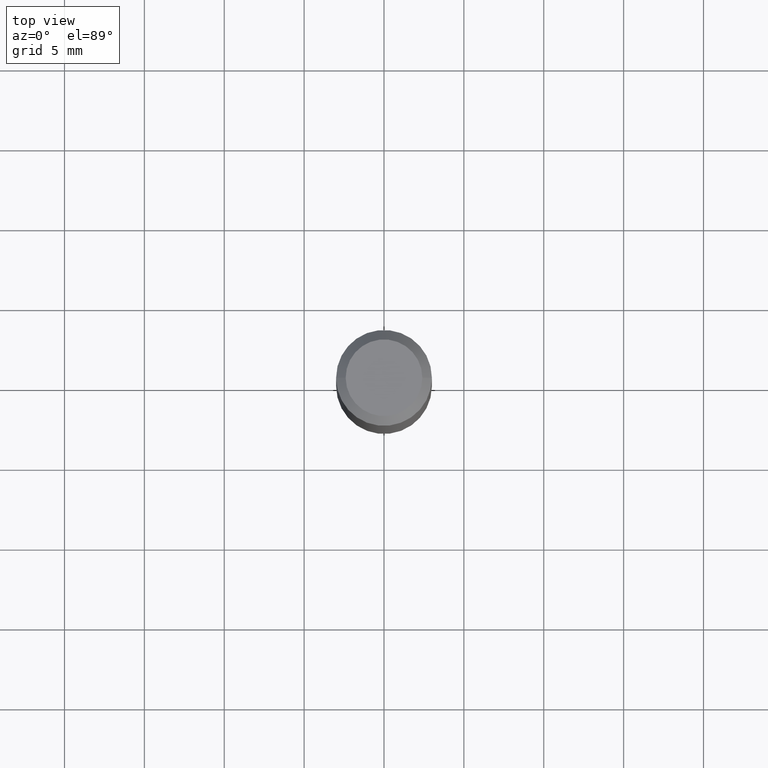
[diagram: clean part render]
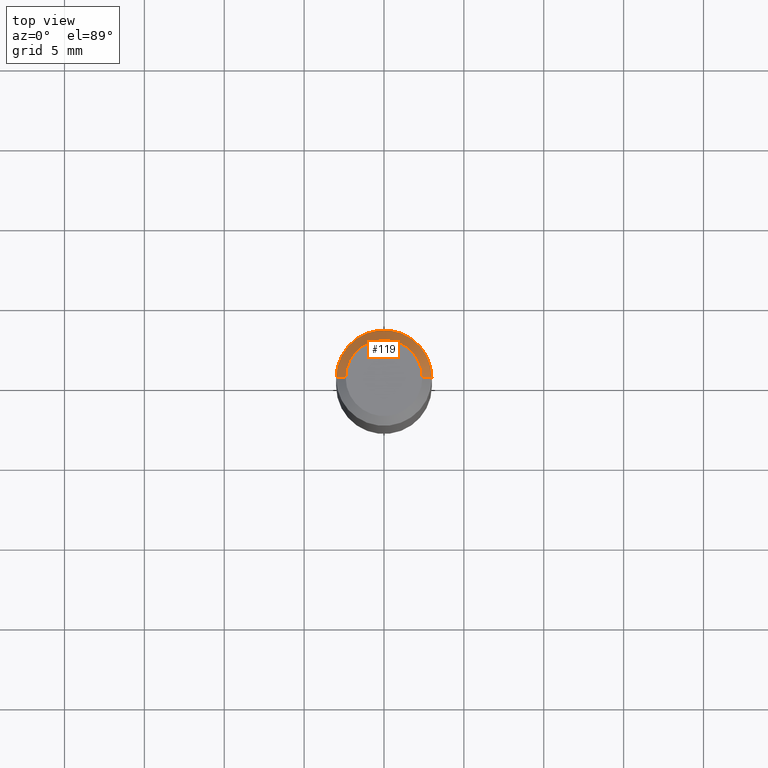
[diagram: same view with one face highlighted and labeled with its STEP entity id]
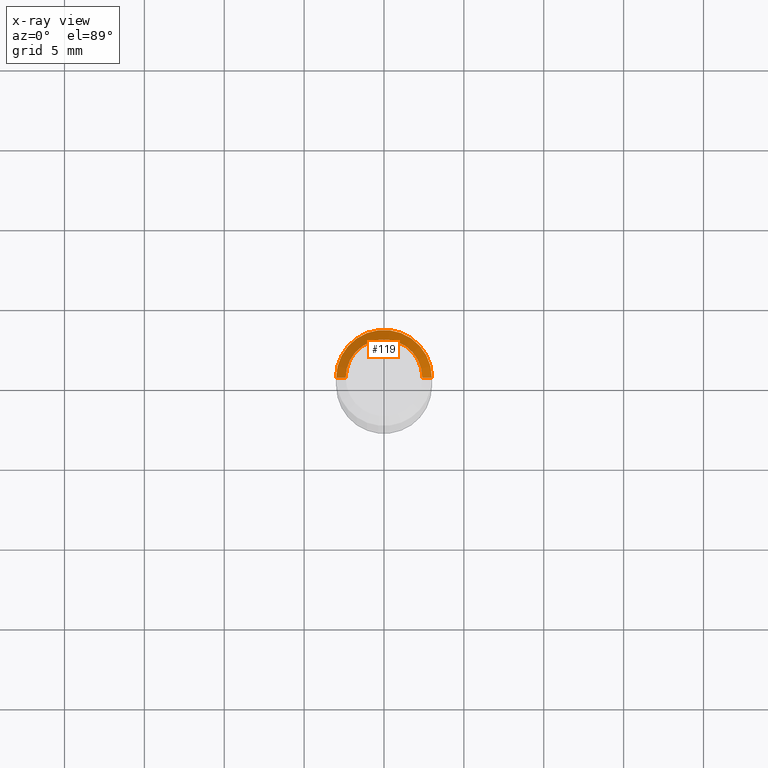
[diagram: x-ray of the same camera — body ghosted, the highlighted face saturated]
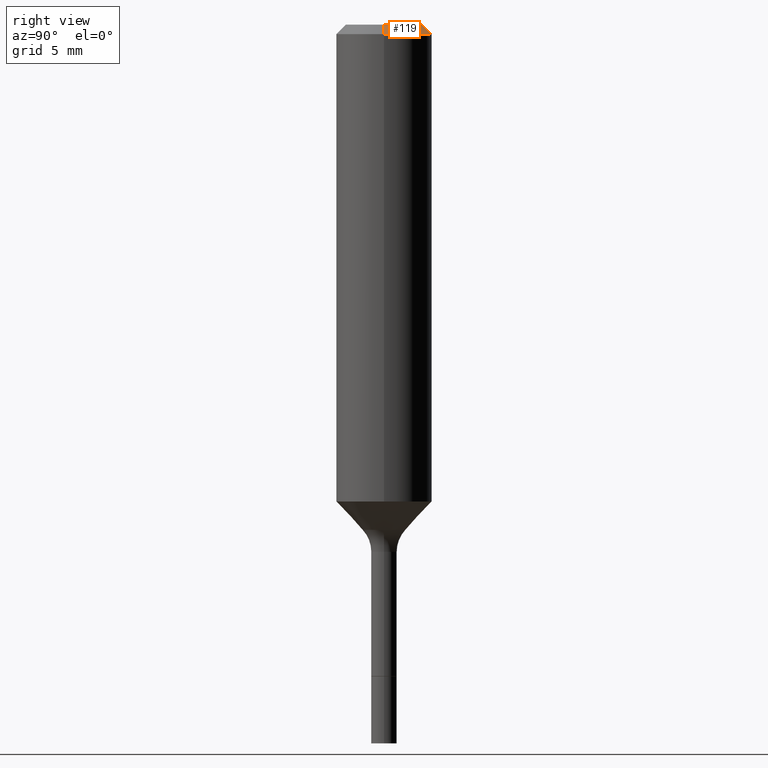
[diagram: same view with one face highlighted and labeled with its STEP entity id]
A machine part, top view. The second image highlights one B-rep face of the part: STEP entity #119.
The next image is the same camera in x-ray: the body ghosted, the highlighted face saturated — about 0% of this face is hidden behind the body in this view.
A second angle (right view) of the same face is appended — the face is thin or edge-on in the first view.
In plain terms, the highlighted conical surface has half-angle 45 deg.
Its self-contained STEP definition (entity closure, byte-faithful):
#10 = CARTESIAN_POINT ( 'NONE',  ( 7.545787641473140628E-46, -1.077338491108201769E-31, -3.085620075131671975E-17 ) ) ;
#55 = LINE ( 'NONE', #459, #114 ) ;
#59 = DIRECTION ( 'NONE',  ( 2.445468806185136597E-29, -3.491481338843145583E-15, -1.000000000000000000 ) ) ;
#81 = EDGE_CURVE ( 'NONE', #159, #450, #55, .T. ) ;
#96 = AXIS2_PLACEMENT_3D ( 'NONE', #454, #59, #217 ) ;
#104 = CONICAL_SURFACE ( 'NONE', #96, 0.1180999999999999966, 0.7853981633974463916 ) ;
#114 = VECTOR ( 'NONE', #146, 39.37007874015748143 ) ;
#119 = ADVANCED_FACE ( 'NONE', ( #339 ), #104, .T. ) ;
#146 = DIRECTION ( 'NONE',  ( -0.7071067811865461294, 2.468850131082242072E-15, -0.7071067811865489050 ) ) ;
#147 = ORIENTED_EDGE ( 'NONE', *, *, #81, .F. ) ;
#159 = VERTEX_POINT ( 'NONE', #363 ) ;
#174 = DIRECTION ( 'NONE',  ( -2.445468806185136597E-29, 3.491481338843145583E-15, 1.000000000000000000 ) ) ;
#212 = EDGE_CURVE ( 'NONE', #332, #450, #297, .T. ) ;
#213 = EDGE_LOOP ( 'NONE', ( #315, #479, #403, #147 ) ) ;
#217 = DIRECTION ( 'NONE',  ( -1.000000000000000000, 6.982962677686266711E-15, 0.000000000000000000 ) ) ;
#245 = CARTESIAN_POINT ( 'NONE',  ( 0.09447999999999998066, -7.704367267948738690E-16, -3.085620075131172158E-17 ) ) ;
#255 = EDGE_CURVE ( 'NONE', #394, #159, #262, .T. ) ;
#262 = CIRCLE ( 'NONE', #378, 0.09447999999999998066 ) ;
#295 = DIRECTION ( 'NONE',  ( 1.000000000000000000, -6.982962677686267499E-15, 4.875432709231658792E-29 ) ) ;
#297 = CIRCLE ( 'NONE', #502, 0.1180999999999999966 ) ;
#315 = ORIENTED_EDGE ( 'NONE', *, *, #255, .F. ) ;
#322 = LINE ( 'NONE', #515, #360 ) ;
#326 = DIRECTION ( 'NONE',  ( 1.000000000000000000, -6.982962677686266711E-15, 0.000000000000000000 ) ) ;
#332 = VERTEX_POINT ( 'NONE', #487 ) ;
#339 = FACE_OUTER_BOUND ( 'NONE', #213, .T. ) ;
#350 = CARTESIAN_POINT ( 'NONE',  ( -0.1180999999999999966, -1.253887402538427015E-15, -0.02362000000000013741 ) ) ;
#360 = VECTOR ( 'NONE', #511, 39.37007874015748143 ) ;
#363 = CARTESIAN_POINT ( 'NONE',  ( -0.09447999999999998066, 7.009847083995354710E-16, -3.085620075132147757E-17 ) ) ;
#378 = AXIS2_PLACEMENT_3D ( 'NONE', #10, #174, #295 ) ;
#394 = VERTEX_POINT ( 'NONE', #245 ) ;
#403 = ORIENTED_EDGE ( 'NONE', *, *, #212, .T. ) ;
#428 = EDGE_CURVE ( 'NONE', #394, #332, #322, .T. ) ;
#448 = CARTESIAN_POINT ( 'NONE',  ( 5.776197320209326656E-31, -8.246878922347558061E-17, -0.02362000000000013741 ) ) ;
#450 = VERTEX_POINT ( 'NONE', #350 ) ;
#454 = CARTESIAN_POINT ( 'NONE',  ( 5.776197320209326656E-31, -8.246878922347558061E-17, -0.02362000000000013741 ) ) ;
#459 = CARTESIAN_POINT ( 'NONE',  ( -0.1180999999999999966, 7.422191030112725094E-16, -0.02362000000000013741 ) ) ;
#479 = ORIENTED_EDGE ( 'NONE', *, *, #428, .T. ) ;
#486 = DIRECTION ( 'NONE',  ( -2.445468806185136597E-29, 3.491481338843145583E-15, 1.000000000000000000 ) ) ;
#487 = CARTESIAN_POINT ( 'NONE',  ( 0.1180999999999999966, -9.071566814582237199E-16, -0.02362000000000013741 ) ) ;
#502 = AXIS2_PLACEMENT_3D ( 'NONE', #448, #486, #326 ) ;
#511 = DIRECTION ( 'NONE',  ( 0.7071067811865461294, -7.319954787623251312E-15, -0.7071067811865489050 ) ) ;
#515 = CARTESIAN_POINT ( 'NONE',  ( 0.1180999999999999966, -8.926936027602933910E-16, -0.02362000000000013741 ) ) ;